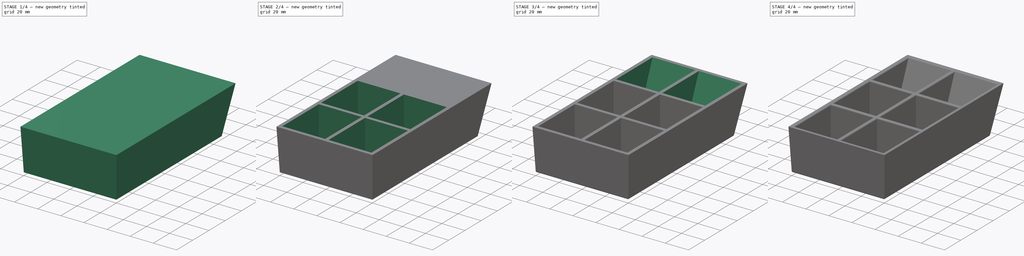
[diagram: build sequence overview — one tinted view per stage of 4, left to right]
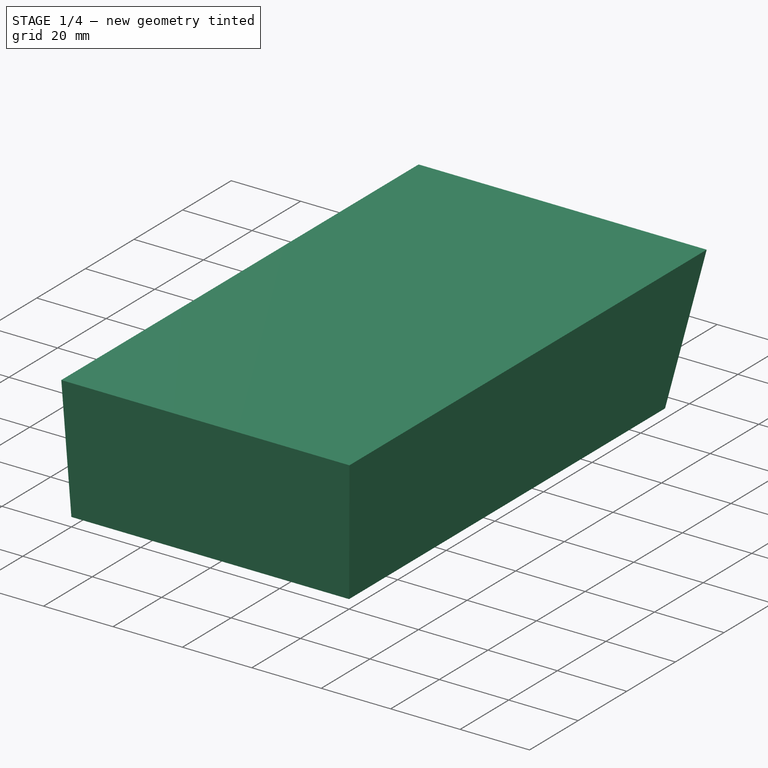
[diagram: stage 1 of 4 — iso view after this stage's code; geometry added in this stage tinted green]
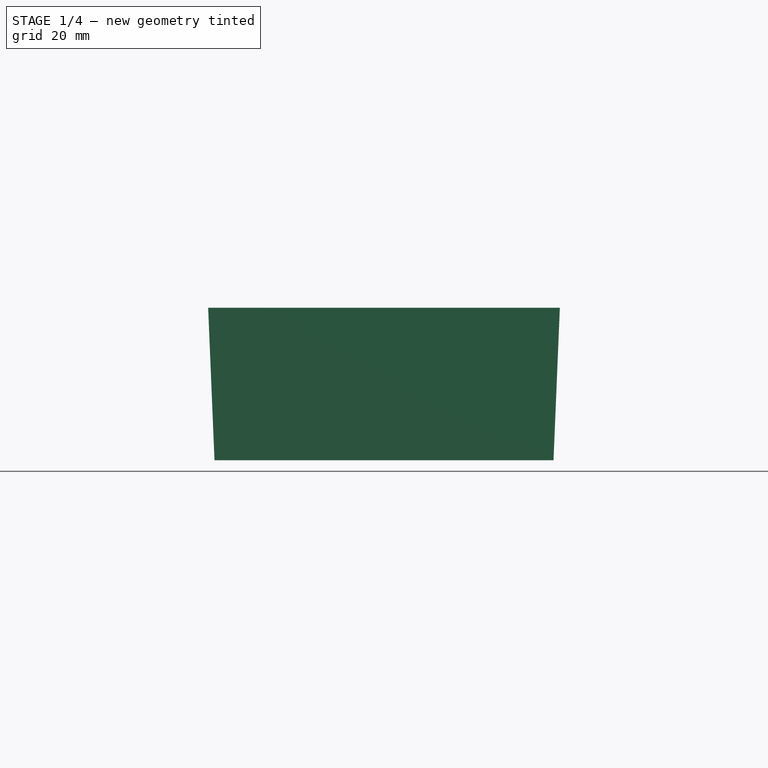
[diagram: stage 1 of 4 — front view after this stage's code; geometry added in this stage tinted green]
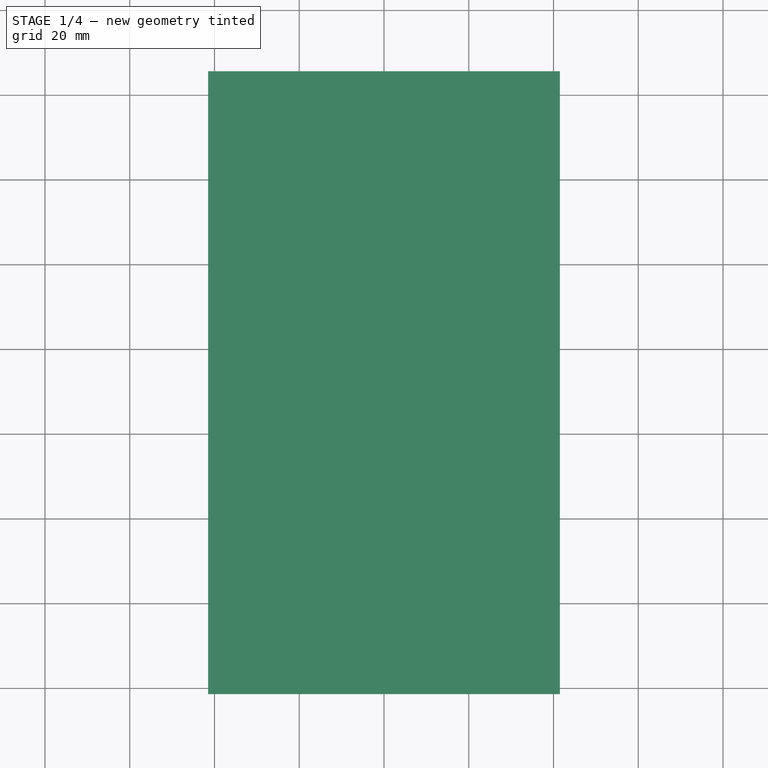
[diagram: stage 1 of 4 — top view after this stage's code; geometry added in this stage tinted green]
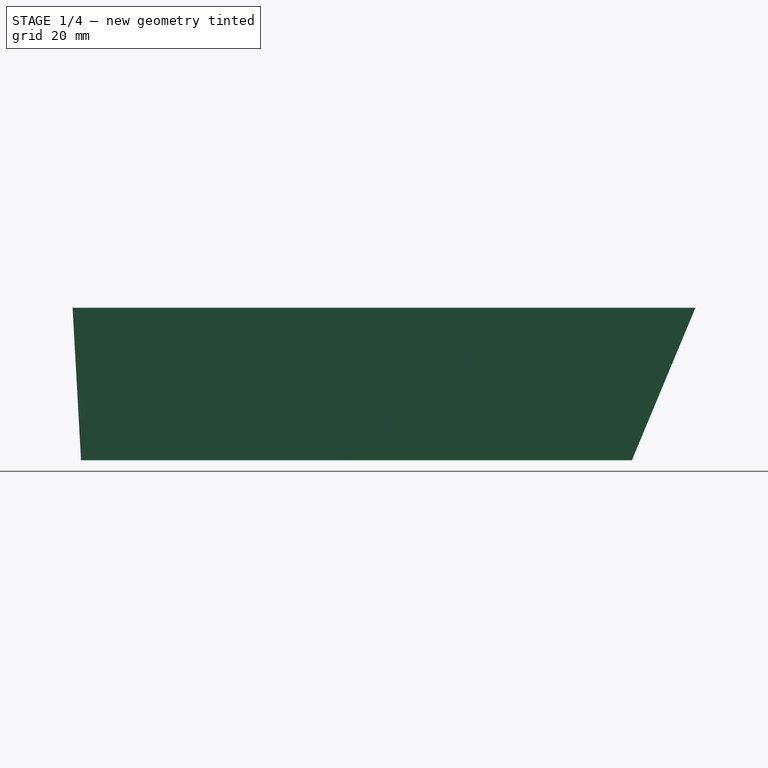
[diagram: stage 1 of 4 — right view after this stage's code; geometry added in this stage tinted green]
FCSTD DOCUMENT  (FreeCAD 0.19RUnknown)
Label: comp_bottom_2x3
License: All rights reserved
LicenseURL: http://en.wikipedia.org/wiki/All_rights_reserved
objects: Sketcher::SketchObject×4, PartDesign::Pocket×3, PartDesign::Fillet×3, PartDesign::Plane×2, PartDesign::Mirrored×2, PartDesign::Pad×1, PartDesign::Body×1
note: 23 computed .brp shape members not serialized (recipe doc carries the construction recipe); baked Part::Feature solids carry a one-line shape summary decoded from their .brp

FEATURE [Sketcher::SketchObject] Sketch
  MapMode = 5
  Placement = pos=(0,0,0) rot=(0.57735,0.57735,0.57735;2.0944rad)
  Support = -> [YZ_Plane]
  sketch-geometry (4):
    g0: LineSegment StartX=0 StartY=0 StartZ=0 EndX=130 EndY=0 EndZ=0
    g1: LineSegment StartX=130 StartY=0 StartZ=0 EndX=145 EndY=36 EndZ=0
    g2: LineSegment StartX=145 StartY=36 StartZ=0 EndX=-2 EndY=36 EndZ=0
    g3: LineSegment StartX=-2 StartY=36 StartZ=0 EndX=0 EndY=0 EndZ=0
  constraints (11):
    c: Horizontal(g0)
    c: Coincident(g0,g1)
    c: Coincident(g1,g2)
    c: Horizontal(g2)
    c: Coincident(g2,g3)
    c: Coincident(g3,g0)
    c: Coincident(g0,g-1)
    c: DistanceX(g0,g0) = 130
    c: DistanceX(g2,g2) = 147
    c: Distance(g0,g2) = 36
    c: DistanceX(g2,g0) = 2
FEATURE [PartDesign::Pad] Pad
  Direction = (1,1,1)
  Length = 41.5
  Length2 = 41.5
  Placement = pos=(0,0,0) rot=(0.57735,0.57735,0.57735;2.0944rad)
  Profile = -> Sketch
  Type = 4
FEATURE [PartDesign::Plane] DatumPlane
  Length = 97.231
  MapMode = 7
  Placement = pos=(-41.5,145,36) rot=(0,0.707107,0.707107;3.14159rad)
  ResizeMode = 0
  Support = -> [Pad]
  Width = 75.231
FEATURE [Sketcher::SketchObject] Sketch001
  ExternalGeometry = -> [Pad]
  MapMode = 5
  Placement = pos=(-41.5,145,36) rot=(0,0.707107,0.707107;3.14159rad)
  Support = -> [DatumPlane]
  sketch-geometry (6):
    g0: LineSegment StartX=0 StartY=0 StartZ=0 EndX=-1.5 EndY=-36 EndZ=0
    g1: LineSegment StartX=-1.5 StartY=-36 StartZ=0 EndX=0 EndY=-36 EndZ=0
    g2: LineSegment StartX=0 StartY=-36 StartZ=0 EndX=0 EndY=0 EndZ=0
    g3: LineSegment StartX=-83 StartY=4.26e-14 StartZ=0 EndX=-83 EndY=-36 EndZ=0
    g4: LineSegment StartX=-83 StartY=-36 StartZ=0 EndX=-81.5 EndY=-36 EndZ=0
    g5: LineSegment StartX=-81.5 StartY=-36 StartZ=0 EndX=-83 EndY=4.26e-14 EndZ=0
  constraints (15):
    c: Coincident(g-1,g0)
    c: Coincident(g0,g1)
    c: Coincident(g1,g2)
    c: Coincident(g2,g0)
    c: Vertical(g2)
    c: Horizontal(g1)
    c: PointOnObject(g0,g-3)
    c: Coincident(g3,g4)
    c: Horizontal(g4)
    c: Coincident(g4,g5)
    c: Coincident(g5,g3)
    c: Coincident(g3,g-5)
    c: Coincident(g3,g-5)
    c: DistanceX(g4,g0) = 80
    c: DistanceX(g0,g1) = 1.5
FEATURE [PartDesign::Pocket] Pocket
  BaseFeature = -> Pad
  Length = 5
  Length2 = 100
  Placement = pos=(0,0,0) rot=(0.57735,0.57735,0.57735;2.0944rad)
  Profile = -> Sketch001
  Type = 1
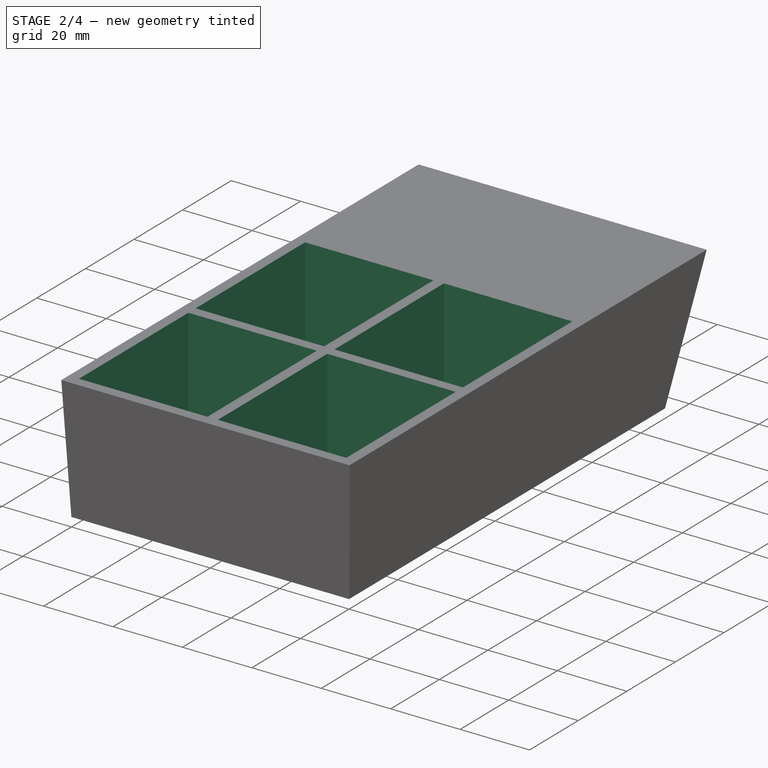
[diagram: stage 2 of 4 — iso view after this stage's code; geometry added in this stage tinted green]
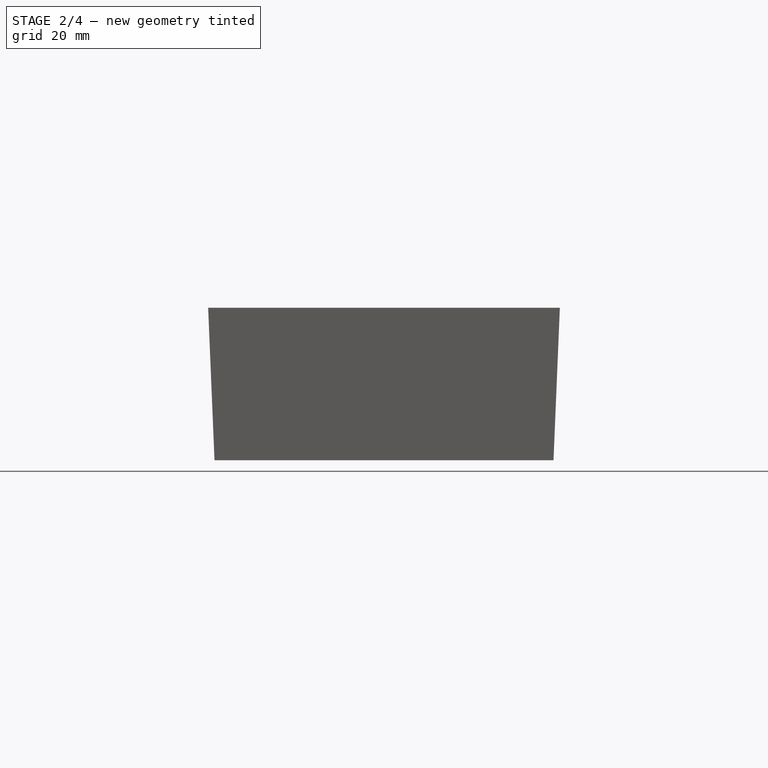
[diagram: stage 2 of 4 — front view after this stage's code; geometry added in this stage tinted green]
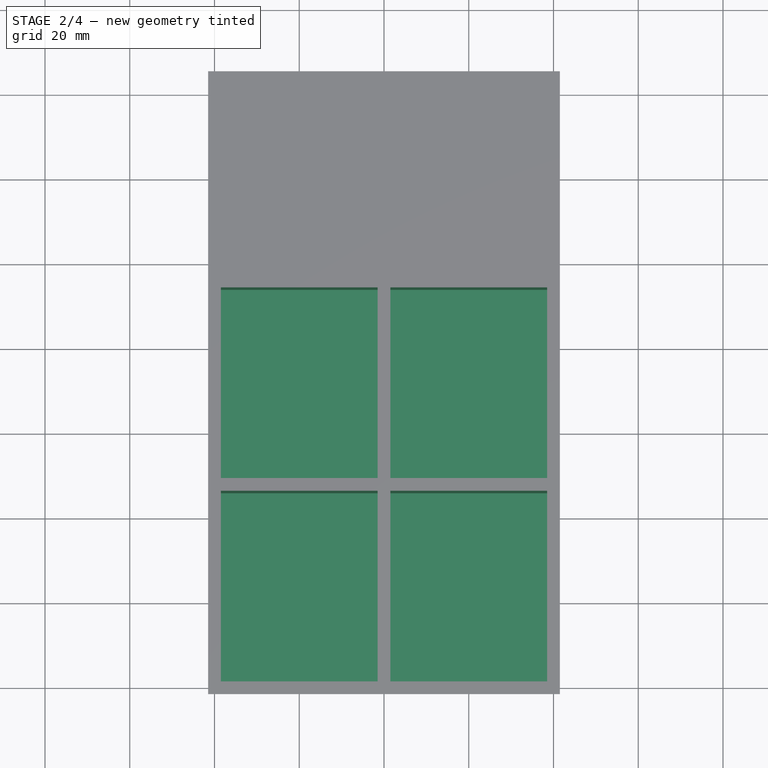
[diagram: stage 2 of 4 — top view after this stage's code; geometry added in this stage tinted green]
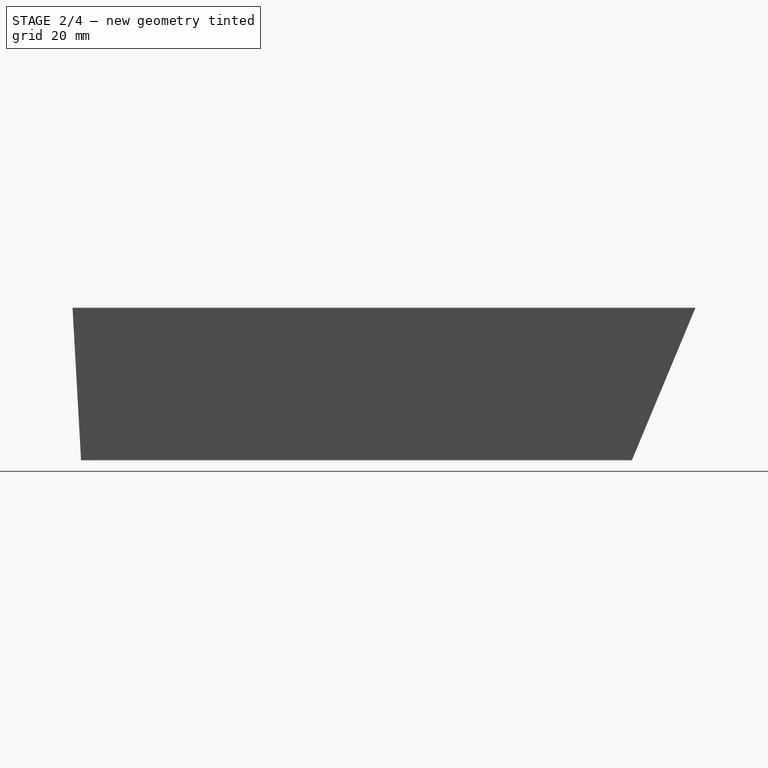
[diagram: stage 2 of 4 — right view after this stage's code; geometry added in this stage tinted green]
FEATURE [Sketcher::SketchObject] Sketch002
  ExternalGeometry = -> [Pocket]
  MapMode = 5
  Placement = pos=(-2.6e-14,2.4e-14,36) rot=(0,0,-1;1.5708rad)
  Support = -> [Pocket]
  sketch-geometry (8):
    g0: LineSegment StartX=-94 StartY=38.5 StartZ=0 EndX=-94 EndY=1.5 EndZ=0
    g1: LineSegment StartX=-94 StartY=1.5 StartZ=0 EndX=-49 EndY=1.5 EndZ=0
    g2: LineSegment StartX=-49 StartY=1.5 StartZ=0 EndX=-49 EndY=38.5 EndZ=0
    g3: LineSegment StartX=-49 StartY=38.5 StartZ=0 EndX=-94 EndY=38.5 EndZ=0
    g4: LineSegment StartX=-46 StartY=38.5 StartZ=0 EndX=-46 EndY=1.5 EndZ=0
    g5: LineSegment StartX=-46 StartY=1.5 StartZ=0 EndX=-1 EndY=1.5 EndZ=0
    g6: LineSegment StartX=-1 StartY=1.5 StartZ=0 EndX=-1 EndY=38.5 EndZ=0
    g7: LineSegment StartX=-1 StartY=38.5 StartZ=0 EndX=-46 EndY=38.5 EndZ=0
  constraints (24):
    c: Vertical(g0)
    c: Coincident(g0,g1)
    c: Horizontal(g1)
    c: Coincident(g1,g2)
    c: Vertical(g2)
    c: Coincident(g2,g3)
    c: Coincident(g3,g0)
    c: Horizontal(g3)
    c: Vertical(g4)
    c: Coincident(g4,g5)
    c: Horizontal(g5)
    c: Coincident(g5,g6)
    c: Vertical(g6)
    c: Coincident(g6,g7)
    c: Coincident(g7,g4)
    c: Horizontal(g7)
    c: Equal(g3,g7)
    c: Equal(g0,g4)
    c: DistanceX(g2,g4) = 3
    c: DistanceY(g0,g-4) = 3
    c: DistanceY(g4,g-4) = 3
    c: DistanceY(g-1,g5) = 1.5
    c: DistanceX(g1,g1) = 45
    c: DistanceX(g6,g-3) = 3
FEATURE [PartDesign::Pocket] Pocket001
  BaseFeature = -> Pocket
  Length = 34
  Length2 = 100
  Placement = pos=(0,0,0) rot=(0.57735,0.57735,0.57735;2.0944rad)
  Profile = -> Sketch002
  Type = 0
FEATURE [PartDesign::Mirrored] Mirrored
  BaseFeature = -> Pocket001
  MirrorPlane = -> YZ_Plane
  Originals = -> [Pocket001]
  Placement = pos=(0,0,0) rot=(0.57735,0.57735,0.57735;2.0944rad)
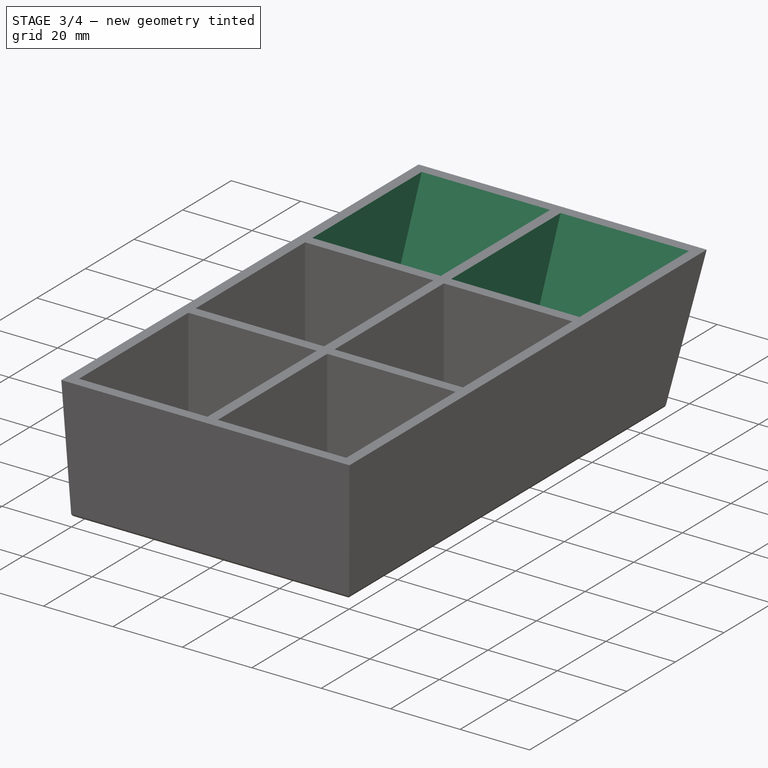
[diagram: stage 3 of 4 — iso view after this stage's code; geometry added in this stage tinted green]
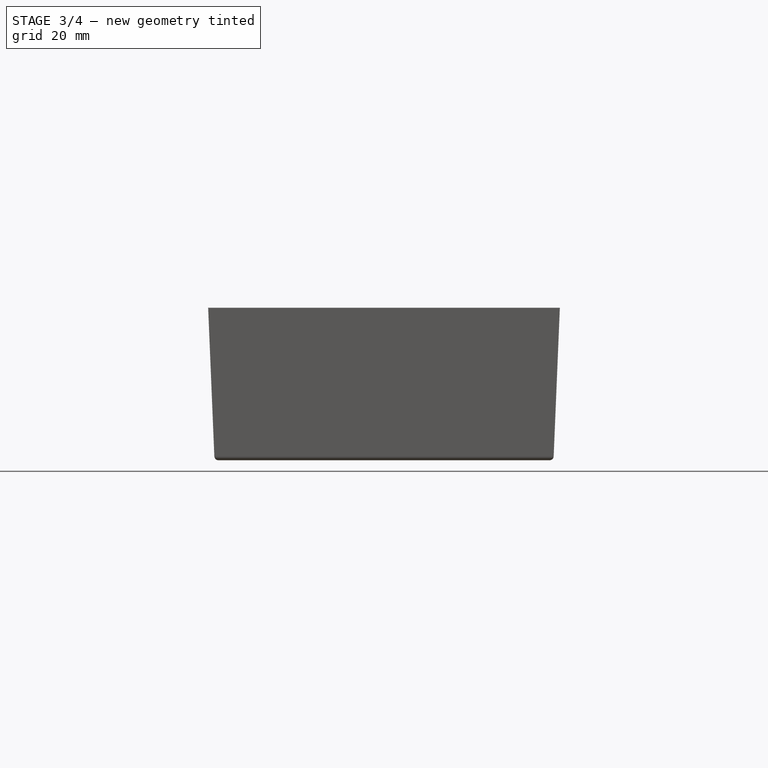
[diagram: stage 3 of 4 — front view after this stage's code; geometry added in this stage tinted green]
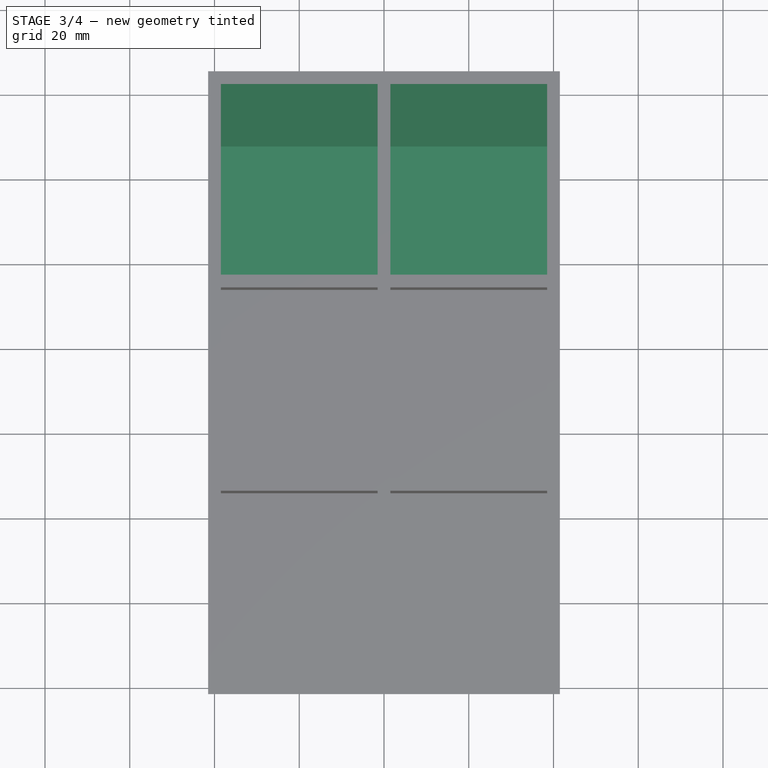
[diagram: stage 3 of 4 — top view after this stage's code; geometry added in this stage tinted green]
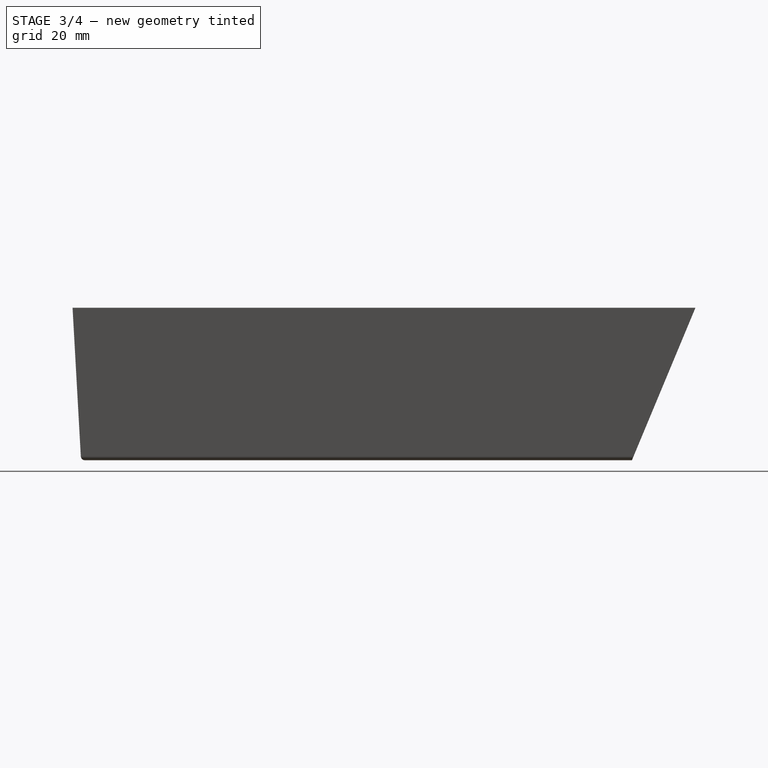
[diagram: stage 3 of 4 — right view after this stage's code; geometry added in this stage tinted green]
FEATURE [PartDesign::Plane] DatumPlane001
  AttachmentOffset = pos=(0,0,-3) rot=(0,0,1;0rad)
  Length = 190.367
  MapMode = 7
  Placement = pos=(-38.5,145,36) rot=(-0.57735,0.57735,0.57735;4.18879rad)
  ResizeMode = 0
  Support = -> [Mirrored]
  Width = 81.3666
FEATURE [Sketcher::SketchObject] Sketch003
  ExternalGeometry = -> [Mirrored]
  MapMode = 5
  Placement = pos=(-38.5,145,36) rot=(-0.57735,0.57735,0.57735;4.18879rad)
  Support = -> [DatumPlane001]
  sketch-geometry (4):
    g0: LineSegment StartX=48 StartY=7.45e-14 StartZ=0 EndX=3 EndY=7.45e-14 EndZ=0
    g1: LineSegment StartX=3 StartY=7.45e-14 StartZ=0 EndX=17.1667 EndY=-34 EndZ=0
    g2: LineSegment StartX=17.1667 StartY=-34 StartZ=0 EndX=48 EndY=-34 EndZ=0
    g3: LineSegment StartX=48 StartY=-34 StartZ=0 EndX=48 EndY=7.11e-14 EndZ=0
  constraints (12):
    c: Horizontal(g0)
    c: Coincident(g0,g1)
    c: Coincident(g1,g2)
    c: Horizontal(g2)
    c: Coincident(g2,g3)
    c: Coincident(g0,g3)
    c: PointOnObject(g0,g-3)
    c: DistanceX(g-1,g0) = 3
    c: Parallel(g1,g-6)
    c: DistanceY(g-6,g1) = 2
    c: Vertical(g3)
    c: DistanceX(g0,g-5) = 3
FEATURE [PartDesign::Pocket] Pocket002
  BaseFeature = -> Mirrored
  Length = 37
  Length2 = 100
  Placement = pos=(0,0,0) rot=(0.57735,0.57735,0.57735;2.0944rad)
  Profile = -> Sketch003
  Type = 0
FEATURE [PartDesign::Mirrored] Mirrored001
  BaseFeature = -> Pocket002
  MirrorPlane = -> YZ_Plane
  Originals = -> [Pocket002]
  Placement = pos=(0,0,0) rot=(0.57735,0.57735,0.57735;2.0944rad)
FEATURE [PartDesign::Fillet] Fillet
  Base = -> Mirrored001 [Edge3,Edge4,Edge1]
  BaseFeature = -> Mirrored001
  Placement = pos=(0,0,0) rot=(0.57735,0.57735,0.57735;2.0944rad)
  Radius = 1
  SupportTransform = false
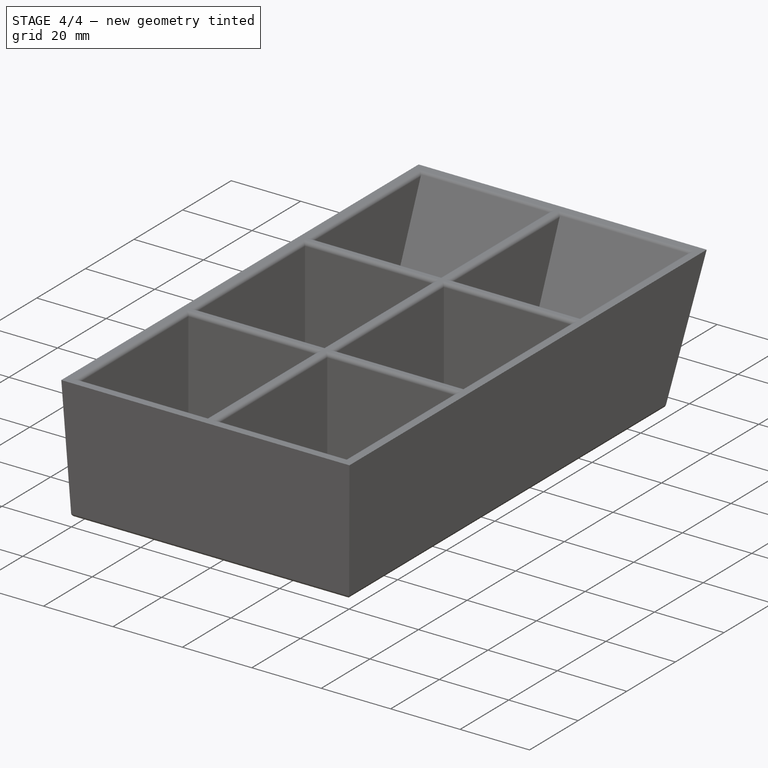
[diagram: stage 4 of 4 — iso view after this stage's code; geometry added in this stage tinted green]
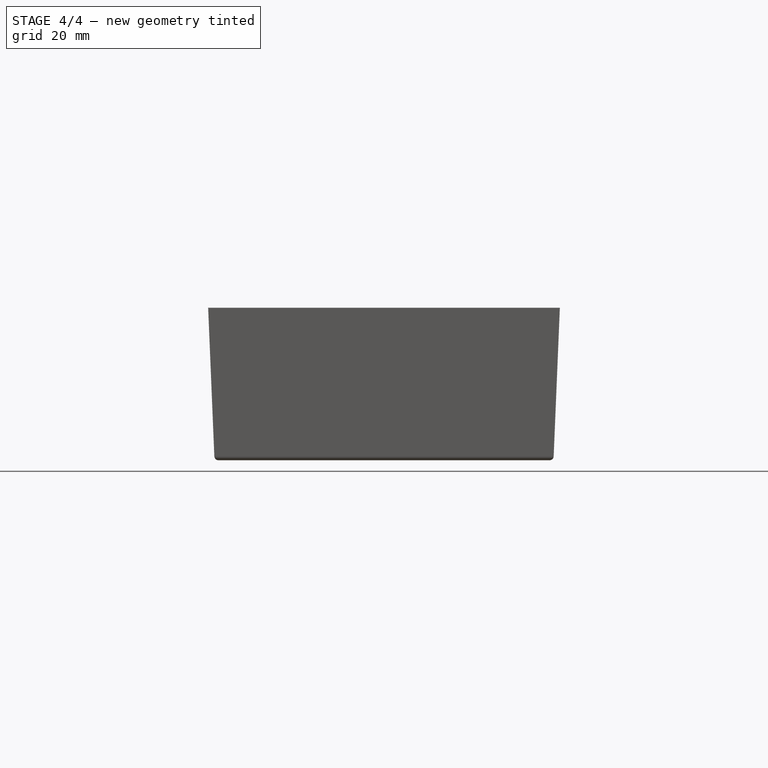
[diagram: stage 4 of 4 — front view after this stage's code; geometry added in this stage tinted green]
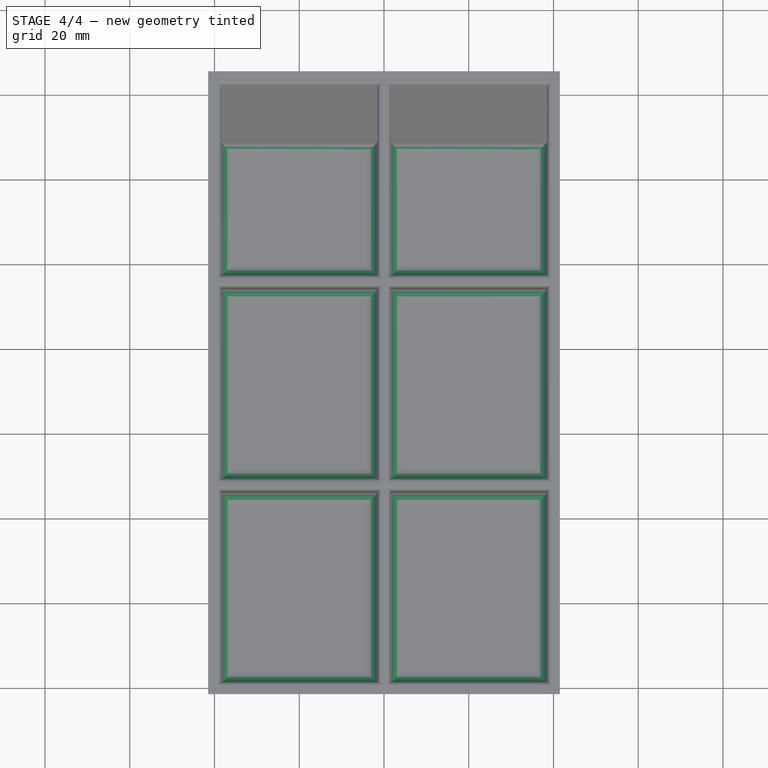
[diagram: stage 4 of 4 — top view after this stage's code; geometry added in this stage tinted green]
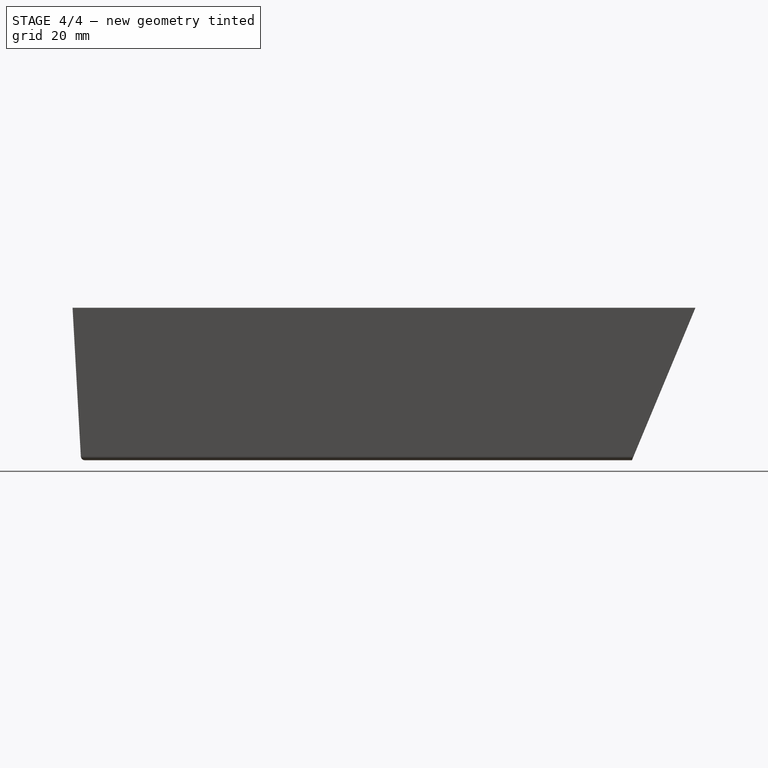
[diagram: stage 4 of 4 — right view after this stage's code; geometry added in this stage tinted green]
FEATURE [PartDesign::Fillet] Fillet001
  Base = -> Fillet [Edge44,Edge42,Edge41,Edge43,Edge32,Edge30,Edge29,Edge31,Edge39,Edge40,Edge38,Edge37,Edge34,Edge33,Edge35,Edge36,Edge22,Edge28,Edge27,Edge26,Edge25,Edge21,Edge23,Edge24]
  BaseFeature = -> Fillet
  Placement = pos=(0,0,0) rot=(0.57735,0.57735,0.57735;2.0944rad)
  Radius = 1
  SupportTransform = false
FEATURE [PartDesign::Fillet] Fillet002
  Base = -> Fillet001 [Face58,Face59,Face63,Face60,Face61,Face62]
  BaseFeature = -> Fillet001
  Placement = pos=(0,0,0) rot=(0.57735,0.57735,0.57735;2.0944rad)
  Radius = 3
  SupportTransform = false
FEATURE [PartDesign::Body] Body
  Group = -> [Sketch,Pad,DatumPlane,Sketch001,Pocket,Sketch002,Pocket001,Mirrored,DatumPlane001,Sketch003,Pocket002,Mirrored001,Fillet,Fillet001,Fillet002]
  Origin = -> Origin
  Tip = -> Fillet002
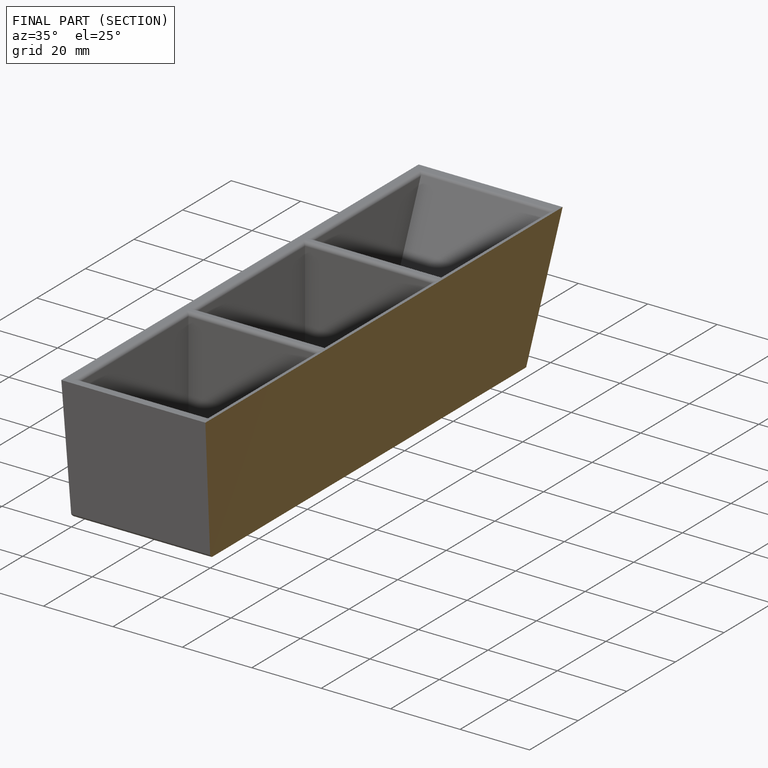
[diagram: finished part — half-section view (interior)]
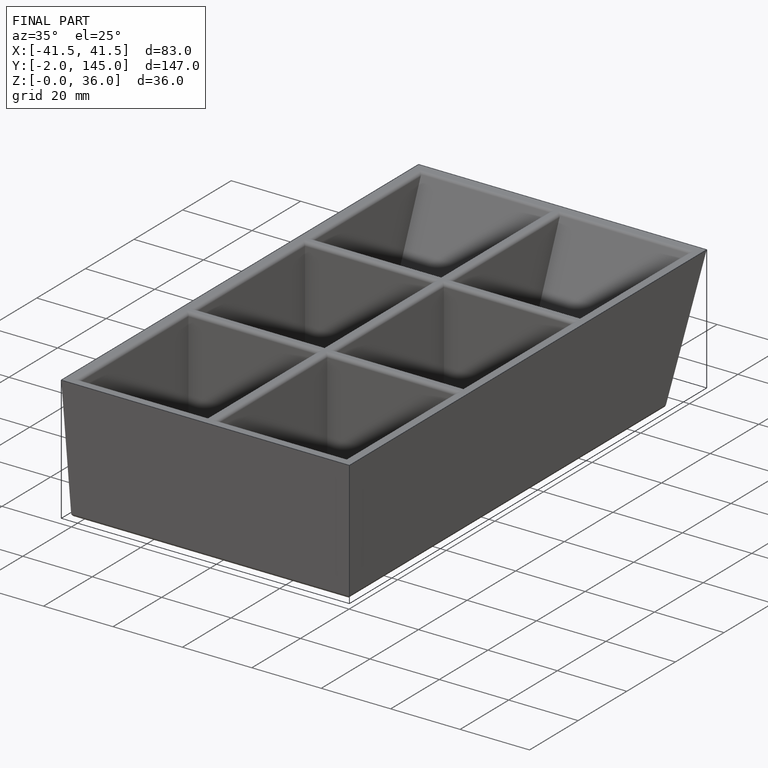
[diagram: finished part — iso view with bounding-box wireframe]
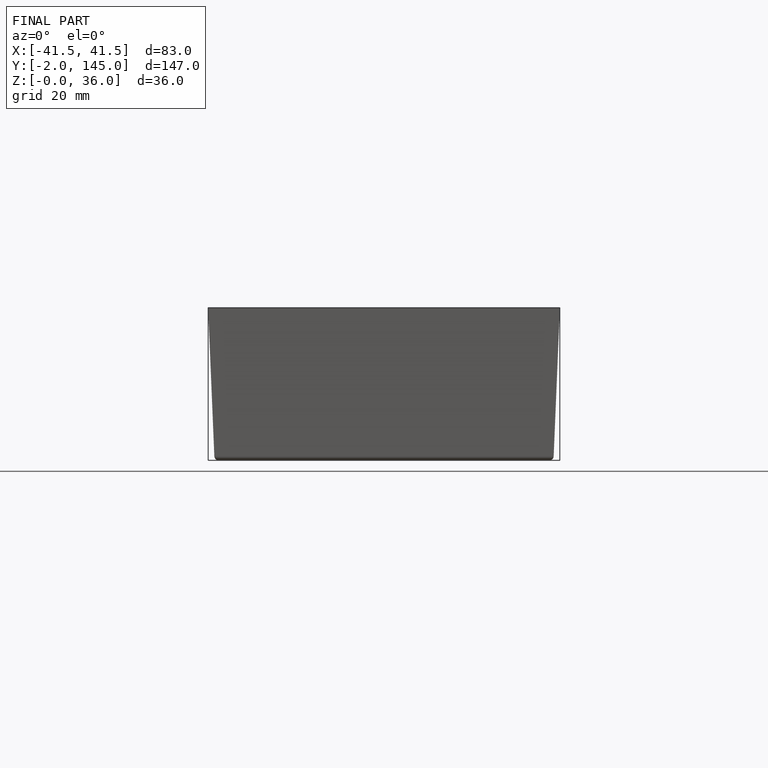
[diagram: finished part — front view with bounding-box wireframe]
